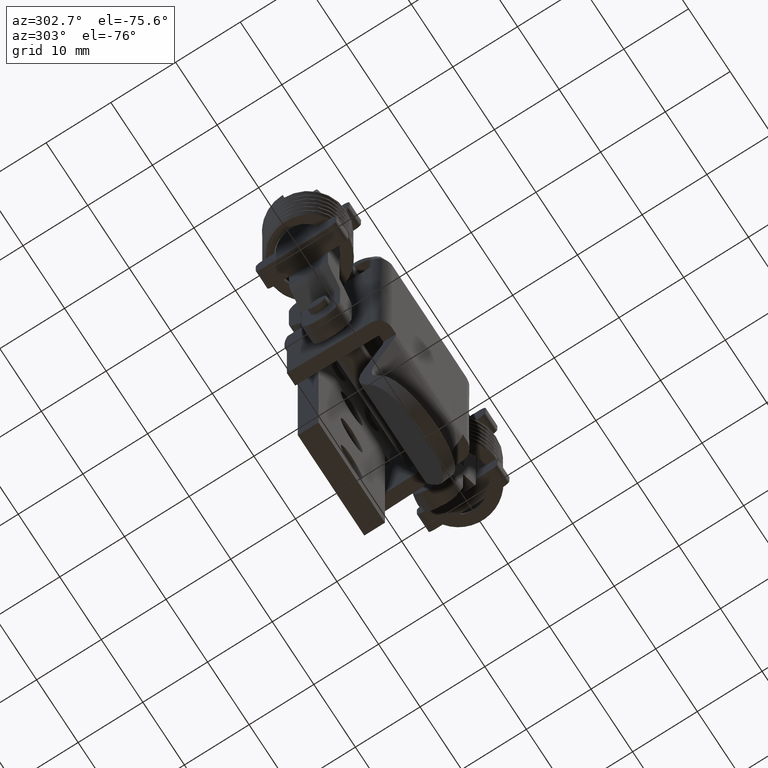
[diagram: clean part render]
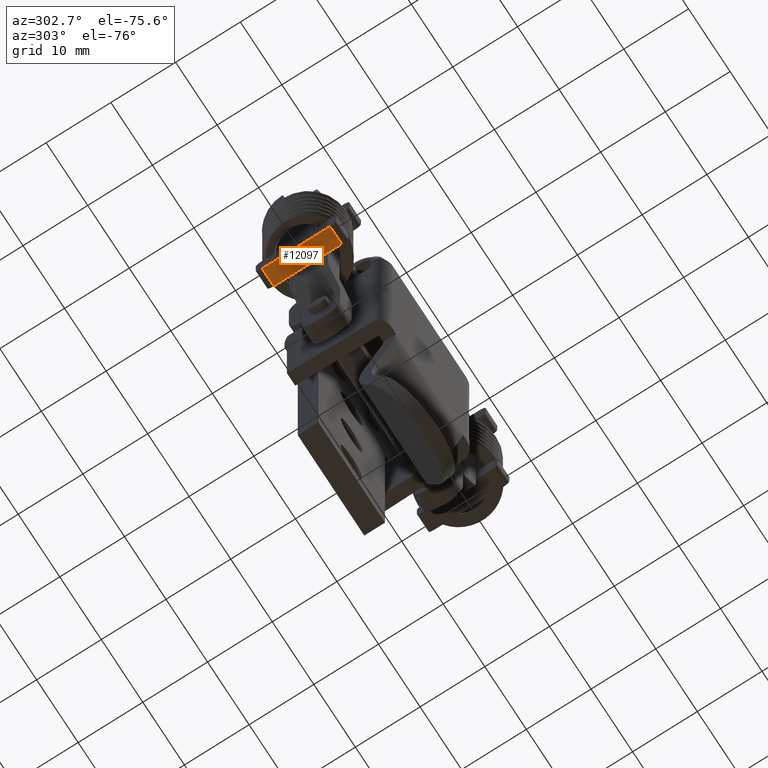
[diagram: same view with one face highlighted and labeled with its STEP entity id]
A machine part, auxiliary view. The second image highlights one B-rep face of the part: STEP entity #12097.
In plain terms, the highlighted face is a freeform B-spline surface patch.
Its self-contained STEP definition (entity closure, byte-faithful):
#12031=CARTESIAN_POINT('',(1.669549815588595,18.0,-33.000000000179149));
#12032=VERTEX_POINT('',#12031);
#12046=CARTESIAN_POINT('',(1.669549815588595,20.800000000000001,-33.000000000179149));
#12047=VERTEX_POINT('',#12046);
#12048=CARTESIAN_POINT('',(1.669549815588595,20.800000000000001,-33.000000000179149));
#12049=CARTESIAN_POINT('',(1.669549815588595,18.0,-33.000000000179149));
#12050=QUASI_UNIFORM_CURVE('',1,(#12048,#12049),.UNSPECIFIED.,.F.,.U.);
#12051=EDGE_CURVE('',#12047,#12032,#12050,.T.);
#12070=CARTESIAN_POINT('',(2.194024757724183,17.860140045441209,-33.000000000179149));
#12071=CARTESIAN_POINT('',(-9.354924657160419,17.860140045441209,-33.000000000179149));
#12072=CARTESIAN_POINT('',(2.194024757724183,20.939859228574221,-33.000000000179149));
#12073=CARTESIAN_POINT('',(-9.354924657160419,20.939859228574221,-33.000000000179149));
#12074=B_SPLINE_SURFACE_WITH_KNOTS('',1,1,((#12070,#12072),(#12071,#12073)),.UNSPECIFIED.,.F.,.F.,.U.,(2,2),(2,2),(0.0,11.548949414884600),(0.0,3.079719183133015),.UNSPECIFIED.);
#12075=CARTESIAN_POINT('',(-8.830450184411410,18.0,-33.000000000179149));
#12076=VERTEX_POINT('',#12075);
#12077=CARTESIAN_POINT('',(-8.830450184411410,18.0,-33.000000000179149));
#12078=CARTESIAN_POINT('',(1.669549815588595,18.0,-33.000000000179149));
#12079=QUASI_UNIFORM_CURVE('',1,(#12077,#12078),.UNSPECIFIED.,.F.,.U.);
#12080=EDGE_CURVE('',#12076,#12032,#12079,.T.);
#12081=ORIENTED_EDGE('',*,*,#12080,.F.);
#12082=CARTESIAN_POINT('',(-8.830450184411410,20.800000000000001,-33.000000000179149));
#12083=VERTEX_POINT('',#12082);
#12084=CARTESIAN_POINT('',(-8.830450184411410,20.800000000000001,-33.000000000179149));
#12085=CARTESIAN_POINT('',(-8.830450184411410,18.0,-33.000000000179149));
#12086=QUASI_UNIFORM_CURVE('',1,(#12084,#12085),.UNSPECIFIED.,.F.,.U.);
#12087=EDGE_CURVE('',#12083,#12076,#12086,.T.);
#12088=ORIENTED_EDGE('',*,*,#12087,.F.);
#12089=CARTESIAN_POINT('',(-8.830450184411410,20.800000000000001,-33.000000000179149));
#12090=CARTESIAN_POINT('',(1.669549815588595,20.800000000000001,-33.000000000179149));
#12091=QUASI_UNIFORM_CURVE('',1,(#12089,#12090),.UNSPECIFIED.,.F.,.U.);
#12092=EDGE_CURVE('',#12083,#12047,#12091,.T.);
#12093=ORIENTED_EDGE('',*,*,#12092,.T.);
#12094=ORIENTED_EDGE('',*,*,#12051,.T.);
#12095=EDGE_LOOP('',(#12081,#12088,#12093,#12094));
#12096=FACE_OUTER_BOUND('',#12095,.T.);
#12097=ADVANCED_FACE('',(#12096),#12074,.T.);